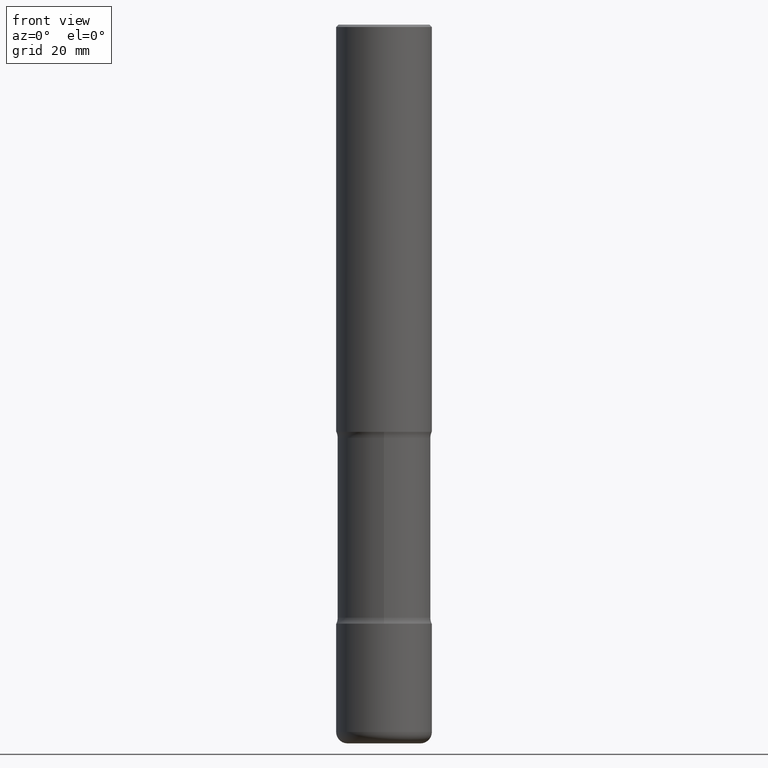
[diagram: clean part render]
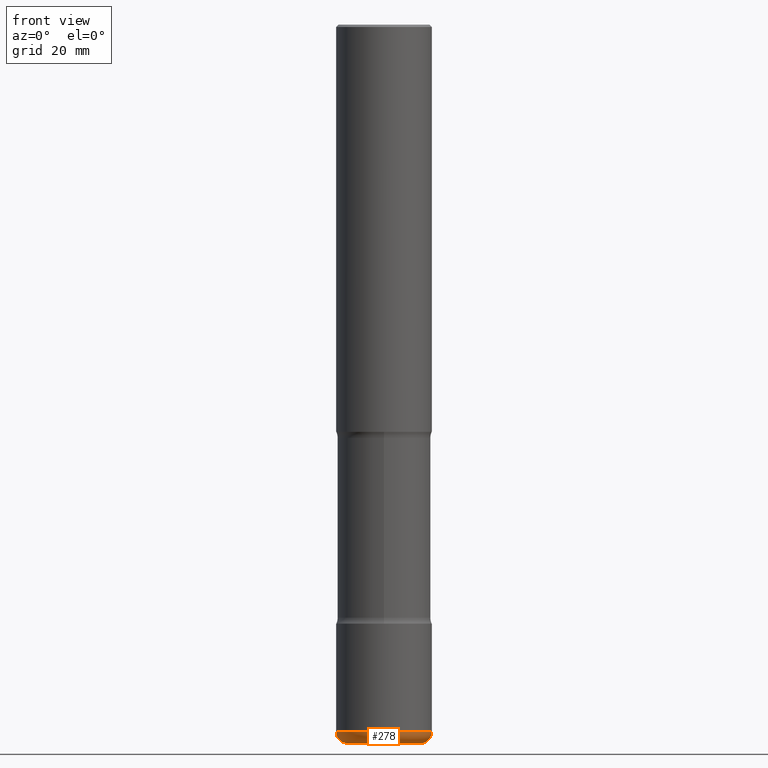
[diagram: same view with one face highlighted and labeled with its STEP entity id]
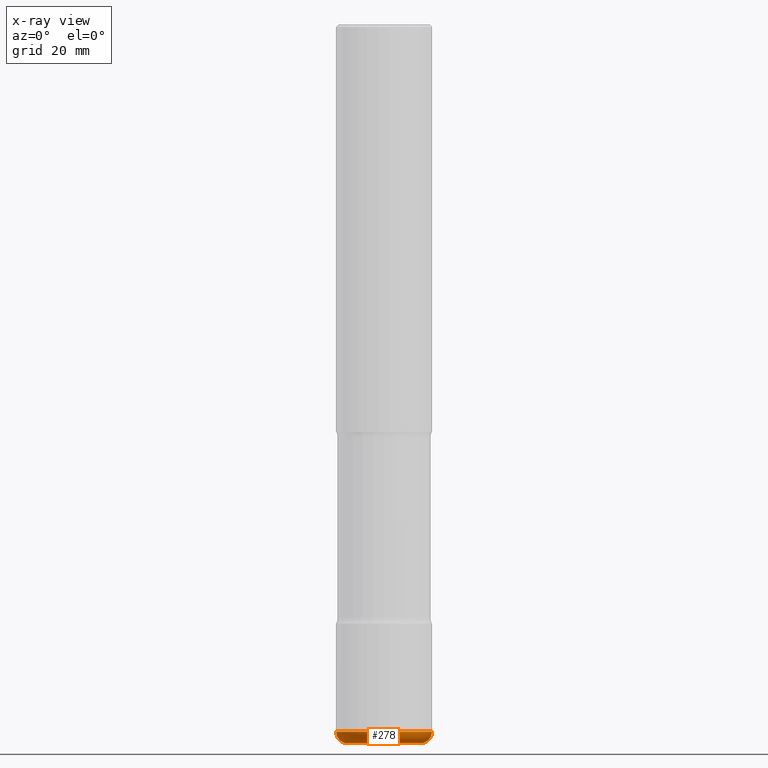
[diagram: x-ray of the same camera — body ghosted, the highlighted face saturated]
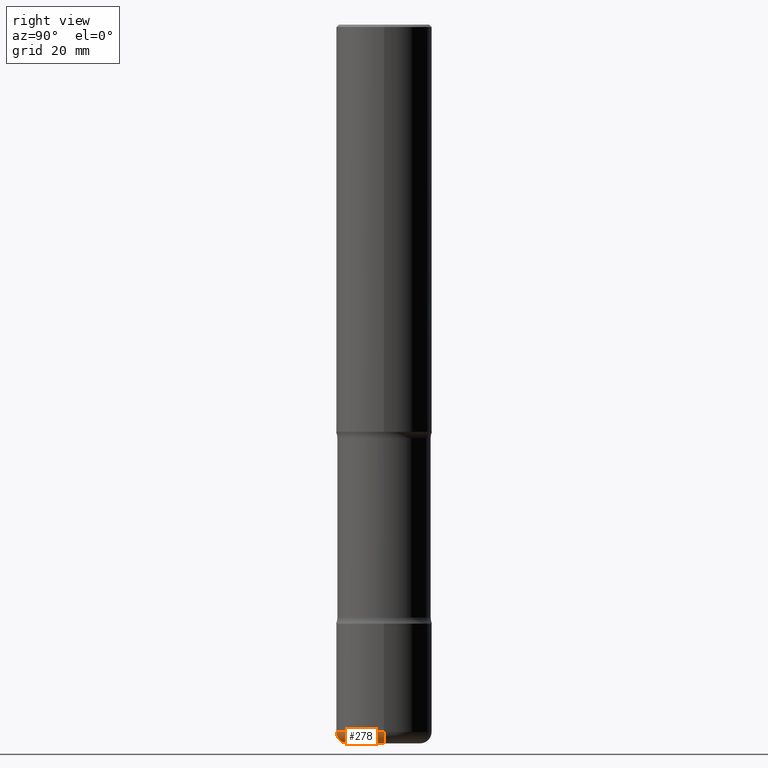
[diagram: same view with one face highlighted and labeled with its STEP entity id]
A machine part, front view. The second image highlights one B-rep face of the part: STEP entity #278.
The next image is the same camera in x-ray: the body ghosted, the highlighted face saturated — about 0% of this face is hidden behind the body in this view.
A second angle (right view) of the same face is appended — the face is thin or edge-on in the first view.
In plain terms, the highlighted toroidal blend (fillet) surface has major radius 7.5997 mm and minor (blend) radius 2.4003 mm.
Its self-contained STEP definition (entity closure, byte-faithful):
#34 = CARTESIAN_POINT ( 'NONE',  ( 0.2992000000000003546, -2.270824547970193579E-14, -5.905500000000001748 ) ) ;
#36 = DIRECTION ( 'NONE',  ( -2.445468806185136597E-29, 3.491481338843145583E-15, 1.000000000000000000 ) ) ;
#39 = VERTEX_POINT ( 'NONE', #533 ) ;
#43 = AXIS2_PLACEMENT_3D ( 'NONE', #387, #547, #311 ) ;
#58 = DIRECTION ( 'NONE',  ( -6.982962677686266711E-15, -1.000000000000000000, 3.491481338843145583E-15 ) ) ;
#86 = TOROIDAL_SURFACE ( 'NONE', #285, 0.2992000000000003546, 0.09449999999999986189 ) ;
#97 = ORIENTED_EDGE ( 'NONE', *, *, #508, .T. ) ;
#106 = CARTESIAN_POINT ( 'NONE',  ( 0.2992000000000003546, -2.237830049318126136E-14, -5.811000000000001720 ) ) ;
#118 = CARTESIAN_POINT ( 'NONE',  ( 0.3937000000000002164, -2.303819046622261022E-14, -5.811000000000001720 ) ) ;
#131 = EDGE_CURVE ( 'NONE', #39, #477, #418, .T. ) ;
#140 = DIRECTION ( 'NONE',  ( 1.000000000000000000, -6.982962677686266711E-15, 0.000000000000000000 ) ) ;
#153 = DIRECTION ( 'NONE',  ( -2.445468806185136597E-29, 3.491481338843145583E-15, 1.000000000000000000 ) ) ;
#158 = EDGE_CURVE ( 'NONE', #39, #219, #249, .T. ) ;
#177 = CIRCLE ( 'NONE', #227, 0.09449999999999987577 ) ;
#191 = ORIENTED_EDGE ( 'NONE', *, *, #261, .F. ) ;
#219 = VERTEX_POINT ( 'NONE', #34 ) ;
#222 = CARTESIAN_POINT ( 'NONE',  ( -0.3937000000000002164, -1.749159130933001301E-14, -5.811000000000001720 ) ) ;
#227 = AXIS2_PLACEMENT_3D ( 'NONE', #106, #58, #330 ) ;
#242 = ORIENTED_EDGE ( 'NONE', *, *, #158, .T. ) ;
#247 = CARTESIAN_POINT ( 'NONE',  ( -0.2992000000000003546, -1.816305419462330473E-14, -5.811000000000001720 ) ) ;
#248 = AXIS2_PLACEMENT_3D ( 'NONE', #247, #344, #250 ) ;
#249 = CIRCLE ( 'NONE', #399, 0.2992000000000003546 ) ;
#250 = DIRECTION ( 'NONE',  ( -1.000000000000000000, 7.105427357600993181E-15, 0.000000000000000000 ) ) ;
#261 = EDGE_CURVE ( 'NONE', #477, #283, #280, .T. ) ;
#278 = ADVANCED_FACE ( 'NONE', ( #503 ), #86, .T. ) ;
#280 = CIRCLE ( 'NONE', #43, 0.3937000000000002720 ) ;
#283 = VERTEX_POINT ( 'NONE', #118 ) ;
#285 = AXIS2_PLACEMENT_3D ( 'NONE', #435, #36, #391 ) ;
#311 = DIRECTION ( 'NONE',  ( 1.000000000000000000, -6.982962677686263555E-15, 0.000000000000000000 ) ) ;
#330 = DIRECTION ( 'NONE',  ( 1.000000000000000000, -6.982962677686254878E-15, 0.000000000000000000 ) ) ;
#344 = DIRECTION ( 'NONE',  ( 7.105427357601001859E-15, 1.000000000000000000, -3.491481338843145583E-15 ) ) ;
#386 = CARTESIAN_POINT ( 'NONE',  ( 1.444171603492632719E-28, -2.061894304653820143E-14, -5.905500000000001748 ) ) ;
#387 = CARTESIAN_POINT ( 'NONE',  ( 1.421061923274183479E-28, -2.028899806001752700E-14, -5.811000000000001720 ) ) ;
#391 = DIRECTION ( 'NONE',  ( 1.000000000000000000, -6.982962677686264344E-15, 4.883557194083112340E-29 ) ) ;
#399 = AXIS2_PLACEMENT_3D ( 'NONE', #386, #153, #140 ) ;
#418 = CIRCLE ( 'NONE', #248, 0.09449999999999987577 ) ;
#435 = CARTESIAN_POINT ( 'NONE',  ( 1.421061923274183479E-28, -2.028899806001752700E-14, -5.811000000000001720 ) ) ;
#477 = VERTEX_POINT ( 'NONE', #222 ) ;
#503 = FACE_OUTER_BOUND ( 'NONE', #535, .T. ) ;
#508 = EDGE_CURVE ( 'NONE', #219, #283, #177, .T. ) ;
#515 = ORIENTED_EDGE ( 'NONE', *, *, #131, .F. ) ;
#533 = CARTESIAN_POINT ( 'NONE',  ( -0.2992000000000003546, -1.799229524523699924E-14, -5.905500000000001748 ) ) ;
#535 = EDGE_LOOP ( 'NONE', ( #515, #242, #97, #191 ) ) ;
#547 = DIRECTION ( 'NONE',  ( -2.445468806185136597E-29, 3.491481338843145583E-15, 1.000000000000000000 ) ) ;